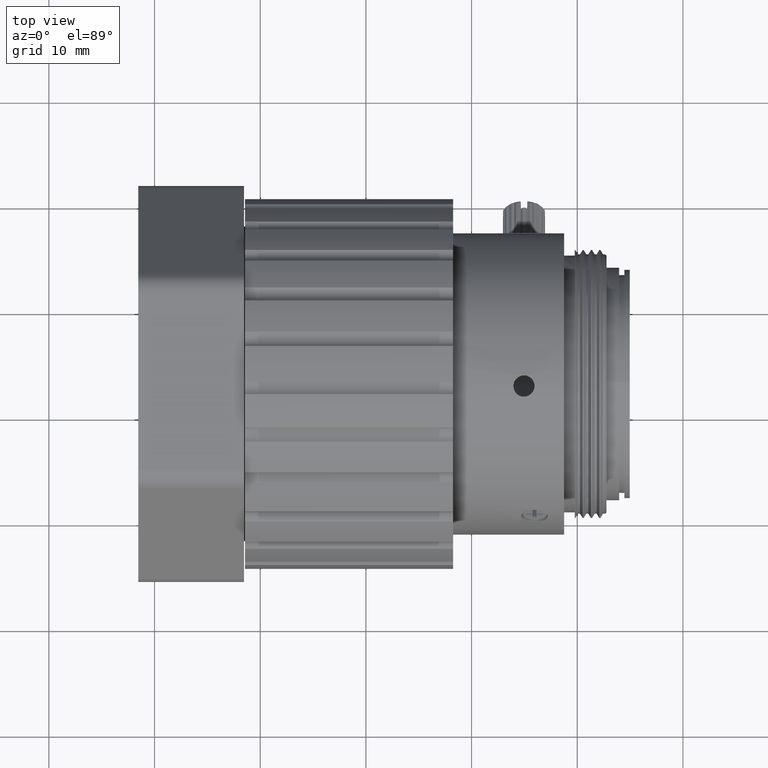
[diagram: clean part render]
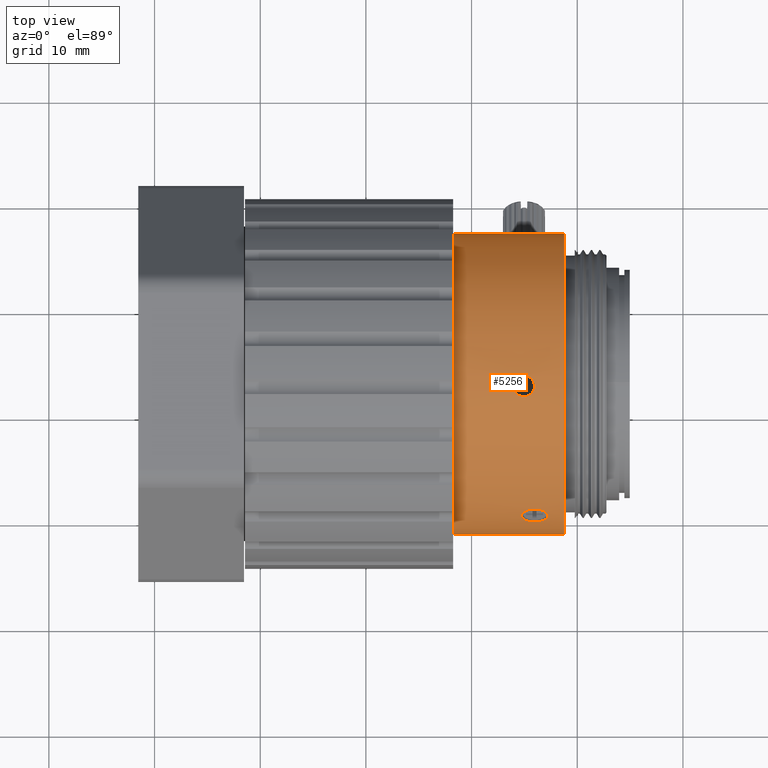
[diagram: same view with one face highlighted and labeled with its STEP entity id]
A machine part, top view. The second image highlights one B-rep face of the part: STEP entity #5256.
In plain terms, the highlighted cylindrical surface (bore or boss wall) has radius 14.3 mm, axis along (-1, 0, 0).
Its self-contained STEP definition (entity closure, byte-faithful):
#248 = DIRECTION ( 'NONE',  ( 1.000000000000000000, -0.000000000000000000, -0.000000000000000000 ) ) ;
#467 = CARTESIAN_POINT ( 'NONE',  ( 13.95930528475796883, -8.972121651933210984, 38.85176325073183534 ) ) ;
#554 = CARTESIAN_POINT ( 'NONE',  ( 15.19131848937366236, -8.989553751104731205, 54.12118087033677938 ) ) ;
#576 = AXIS2_PLACEMENT_3D ( 'NONE', #1005, #5946, #14564 ) ;
#609 = CARTESIAN_POINT ( 'NONE',  ( 14.34488005729913418, 3.460288692734489580, 60.79642912444371206 ) ) ;
#701 = CARTESIAN_POINT ( 'NONE',  ( 15.75855046081519895, -9.354353363387508224, 39.49256108022893130 ) ) ;
#732 = ORIENTED_EDGE ( 'NONE', *, *, #12759, .T. ) ;
#847 = CARTESIAN_POINT ( 'NONE',  ( 15.83335502325608779, -8.769031132363121372, 38.54011996839888354 ) ) ;
#946 = CARTESIAN_POINT ( 'NONE',  ( 13.95930528475792443, 15.77669590175412395, 39.86027209547955863 ) ) ;
#990 = CARTESIAN_POINT ( 'NONE',  ( 15.22131645592887494, 1.687600854544923035, 60.72944165753938961 ) ) ;
#1005 = CARTESIAN_POINT ( 'NONE',  ( 18.76177132358969146, 3.111155698412859660, 46.50038591147875877 ) ) ;
#1022 = CARTESIAN_POINT ( 'NONE',  ( 8.259214877692100387, -3.644554944435801858, 33.89680016475590918 ) ) ;
#1109 = VERTEX_POINT ( 'NONE', #7000 ) ;
#1513 = CARTESIAN_POINT ( 'NONE',  ( 14.95812204243787136, -9.112611687075196087, 53.92219134493483779 ) ) ;
#1533 = DIRECTION ( 'NONE',  ( 0.000000000000000000, -0.4724273177222766407, -0.8813696327136164577 ) ) ;
#1562 = CARTESIAN_POINT ( 'NONE',  ( 14.95921487769202862, 1.661582236805126289, 60.72672545277668377 ) ) ;
#1656 = CARTESIAN_POINT ( 'NONE',  ( 14.08537875894052505, -8.768845173143894556, 38.53985438590066792 ) ) ;
#1674 = CARTESIAN_POINT ( 'NONE',  ( 15.95921487769214053, -8.853651816609298564, 54.33194904366143874 ) ) ;
#1734 = CARTESIAN_POINT ( 'NONE',  ( 15.57412110108668912, -9.443805607539927038, 39.65411162239735887 ) ) ;
#1817 = CARTESIAN_POINT ( 'NONE',  ( 14.74221701240147553, -9.644997154344610024, 52.96515201297404474 ) ) ;
#1890 = CARTESIAN_POINT ( 'NONE',  ( 14.95921487769202862, -8.484429016410336644, 38.13184869842579872 ) ) ;
#1988 = CARTESIAN_POINT ( 'NONE',  ( 15.22105673595566167, 15.22542152171683405, 38.90189308559828163 ) ) ;
#2020 = CARTESIAN_POINT ( 'NONE',  ( 15.93344270216973158, 2.399310190230629747, 60.78317096871395364 ) ) ;
#2191 = EDGE_LOOP ( 'NONE', ( #9912 ) ) ;
#2223 = CARTESIAN_POINT ( 'NONE',  ( 15.93344270216976533, 15.83633314886254873, 39.97546967651700811 ) ) ;
#2541 = CARTESIAN_POINT ( 'NONE',  ( 13.95912494831253881, -9.109658170048044568, 39.07349365937822228 ) ) ;
#2777 = CARTESIAN_POINT ( 'NONE',  ( 14.15987974451657649, -8.706183481334706542, 38.44749700429936468 ) ) ;
#2932 = CARTESIAN_POINT ( 'NONE',  ( 15.93344270216971736, -8.902176243854453830, 38.74251708920546378 ) ) ;
#2944 = CARTESIAN_POINT ( 'NONE',  ( 17.20910038907542727, -9.414951543638252929, 53.40062078250101507 ) ) ;
#2996 = CARTESIAN_POINT ( 'NONE',  ( 13.98498711210083201, 2.920767604031914377, 60.79963153572202827 ) ) ;
#3024 = CARTESIAN_POINT ( 'NONE',  ( 16.95836055079739069, -9.111506930851959396, 53.92398689543218637 ) ) ;
#3069 = CARTESIAN_POINT ( 'NONE',  ( 15.57412110108668557, 3.459588895768567429, 60.79643849050522419 ) ) ;
#3096 = CARTESIAN_POINT ( 'NONE',  ( 15.32876985512045565, -8.940000344526005449, 54.19867201807329593 ) ) ;
#3144 = B_SPLINE_CURVE_WITH_KNOTS ( 'NONE', 3,
 ( #1562, #14892, #5225, #15133, #10099, #6654, #13934, #13702, #14977, #6419, #2996, #4043, #11537, #609, #5465, #14304, #5535, #5607, #12959, #11924, #3069, #3381, #15280, #8086, #4493, #7934, #2020, #8162, #10645, #4269, #11761, #990, #11845, #5842 ),
 .UNSPECIFIED., .T., .F.,
 ( 4, 2, 2, 2, 2, 2, 2, 2, 2, 2, 2, 2, 2, 2, 2, 2, 4 ),
 ( 0.000000000000000000, 0.0003908431693371314871, 0.0007816863386742629741, 0.001172529508011394732, 0.001563372677348526599, 0.001954215846685658682, 0.002345059016022790332, 0.002735902185359921981, 0.003126745354697053631, 0.003517588524034186148, 0.003908431693371318232, 0.004299274862708445978, 0.004690118032045573725, 0.005080961201382702339, 0.005471804370719830085, 0.005862647540056963036, 0.006253490709394095119 ),
 .UNSPECIFIED. ) ;
#3169 = CARTESIAN_POINT ( 'NONE',  ( 15.76009210075363143, -8.707131744339536183, 38.44887504033437864 ) ) ;
#3261 = CARTESIAN_POINT ( 'NONE',  ( 15.95921487769214053, -8.853651816609298564, 54.33194904366145295 ) ) ;
#3263 = CARTESIAN_POINT ( 'NONE',  ( 15.83335502325613398, 15.94504164138818858, 40.19197528586151691 ) ) ;
#3341 = CARTESIAN_POINT ( 'NONE',  ( 14.95921487769202862, 16.15631387484378578, 40.64258358323402121 ) ) ;
#3381 = CARTESIAN_POINT ( 'NONE',  ( 15.75855046081519539, 3.274955900179356227, 60.79974584572793361 ) ) ;
#3423 = CARTESIAN_POINT ( 'NONE',  ( 15.46355598764074735, 16.10390950308601177, 40.52703807386266277 ) ) ;
#3499 = CARTESIAN_POINT ( 'NONE',  ( 15.75855046081523270, 15.41286455844685932, 39.20885080847956061 ) ) ;
#3702 = FACE_BOUND ( 'NONE', #9364, .T. ) ;
#3784 = CYLINDRICAL_SURFACE ( 'NONE', #7406, 14.29999999877252037 ) ;
#3920 = B_SPLINE_CURVE_WITH_KNOTS ( 'NONE', 3,
 ( #15063, #3977, #7716, #12595, #13715, #2777, #1656, #11393, #467, #2541, #5317, #10194, #5399, #15447, #7872, #15150, #12823, #4351, #6595, #14174, #1734, #701, #9157, #10500, #9086, #6749, #2932, #847, #3169, #11469, #10275, #5553, #8024, #1890 ),
 .UNSPECIFIED., .T., .F.,
 ( 4, 2, 2, 2, 2, 2, 2, 2, 2, 2, 2, 2, 2, 2, 2, 2, 4 ),
 ( 0.000000000000000000, 0.0003908431693371138146, 0.0007816863386742276291, 0.001172529508011341606, 0.001563372677348455258, 0.001954215846685568910, 0.002345059016022683213, 0.002735902185359797081, 0.003126745354696910516, 0.003517588524034019615, 0.003908431693371128279, 0.004299274862708237811, 0.004690118032045346476, 0.005080961201382455140, 0.005471804370719563805, 0.005862647540056669868, 0.006253490709393774195 ),
 .UNSPECIFIED. ) ;
#3977 = CARTESIAN_POINT ( 'NONE',  ( 14.82705489759719519, -8.484429016410317104, 38.13184869842576319 ) ) ;
#3990 = CARTESIAN_POINT ( 'NONE',  ( 15.32916379140453955, -9.971625122841864197, 52.27401635527879620 ) ) ;
#4043 = CARTESIAN_POINT ( 'NONE',  ( 14.08507502432633984, 3.163029774874128730, 60.80080486090515990 ) ) ;
#4226 = CARTESIAN_POINT ( 'NONE',  ( 17.05148280098941171, -9.183647044423649319, 53.80452596523262798 ) ) ;
#4269 = CARTESIAN_POINT ( 'NONE',  ( 15.57355056234219326, 1.861065601876506381, 60.74594733032839144 ) ) ;
#4298 = CARTESIAN_POINT ( 'NONE',  ( 15.63150836329849724, -8.871685613679291649, 54.30458254146352459 ) ) ;
#4351 = CARTESIAN_POINT ( 'NONE',  ( 15.09137651572853756, -9.538578568225034360, 39.83148623099615548 ) ) ;
#4372 = CARTESIAN_POINT ( 'NONE',  ( 14.34430949822017354, 16.07291681729526545, 40.45958515846609771 ) ) ;
#4493 = CARTESIAN_POINT ( 'NONE',  ( 15.95912447073094498, 2.791067125805450910, 60.79739830560367864 ) ) ;
#4531 = VERTEX_POINT ( 'NONE', #1022 ) ;
#4533 = CARTESIAN_POINT ( 'NONE',  ( 14.15833809906484575, 15.41372338993182289, 39.21028484288729743 ) ) ;
#4694 = CARTESIAN_POINT ( 'NONE',  ( 15.93282684386320902, 15.58892662035935750, 39.51399087047769854 ) ) ;
#5047 = FACE_OUTER_BOUND ( 'NONE', #7938, .T. ) ;
#5179 = CARTESIAN_POINT ( 'NONE',  ( 15.19055744020579013, -9.934050655140881148, 52.35921894373060326 ) ) ;
#5225 = CARTESIAN_POINT ( 'NONE',  ( 14.69737452348663709, 1.687538514616015783, 60.72943520391272898 ) ) ;
#5250 = CARTESIAN_POINT ( 'NONE',  ( 15.79398215728857302, -10.03471994688567825, 52.12852534500747481 ) ) ;
#5256 = ADVANCED_FACE ( 'NONE', ( #5047, #12465, #9997, #14707, #3702, #11042 ), #3784, .T. ) ;
#5317 = CARTESIAN_POINT ( 'NONE',  ( 13.98498711210083734, -9.177160219944797248, 39.18588217304507992 ) ) ;
#5328 = CARTESIAN_POINT ( 'NONE',  ( 14.70932936612829600, -9.569890789890818539, 53.11156309801916819 ) ) ;
#5399 = CARTESIAN_POINT ( 'NONE',  ( 14.15833809906487950, -9.353540868903003513, 39.49110029314155668 ) ) ;
#5465 = CARTESIAN_POINT ( 'NONE',  ( 14.45487485081829959, 3.533789648212835033, 60.79422781457596159 ) ) ;
#5489 = CARTESIAN_POINT ( 'NONE',  ( 16.28657277654837898, -8.871637473283467301, 54.30465591587255147 ) ) ;
#5535 = CARTESIAN_POINT ( 'NONE',  ( 14.82705694834420740, 3.660586784123583737, 60.78982695887275867 ) ) ;
#5553 = CARTESIAN_POINT ( 'NONE',  ( 15.22131645592887317, -8.499790627606614635, 38.15302337997840709 ) ) ;
#5607 = CARTESIAN_POINT ( 'NONE',  ( 15.09137651572853045, 3.660586293143974768, 60.78982697775099098 ) ) ;
#5648 = CARTESIAN_POINT ( 'NONE',  ( 14.08537875894049662, 15.94517866296883746, 40.19226912251856021 ) ) ;
#5726 = CARTESIAN_POINT ( 'NONE',  ( 15.76009210075367228, 15.99311237304676681, 40.29120419240092588 ) ) ;
#5748 = EDGE_CURVE ( 'NONE', #10447, #10447, #3920, .T. ) ;
#5842 = CARTESIAN_POINT ( 'NONE',  ( 14.95921487769202862, 1.661582236805126289, 60.72672545277668377 ) ) ;
#5884 = CARTESIAN_POINT ( 'NONE',  ( 14.45520895285843288, 16.10398665897956860, 40.52720641621360897 ) ) ;
#5946 = DIRECTION ( 'NONE',  ( -1.000000000000000000, 0.000000000000000000, 0.000000000000000000 ) ) ;
#6419 = CARTESIAN_POINT ( 'NONE',  ( 13.95912494831253703, 2.789685271154457524, 60.79736730253735999 ) ) ;
#6595 = CARTESIAN_POINT ( 'NONE',  ( 15.22105673595567588, -9.526465030925500344, 39.80837037324028671 ) ) ;
#6654 = CARTESIAN_POINT ( 'NONE',  ( 14.15987974451657827, 2.045818920815406727, 60.76094629986699402 ) ) ;
#6683 = CARTESIAN_POINT ( 'NONE',  ( 16.28691890926808838, -10.02191444835214362, 52.15869302982645195 ) ) ;
#6741 = ORIENTED_EDGE ( 'NONE', *, *, #10620, .T. ) ;
#6749 = CARTESIAN_POINT ( 'NONE',  ( 15.95930480696577547, -8.972861023517092249, 38.85293143589064613 ) ) ;
#6844 = CARTESIAN_POINT ( 'NONE',  ( 15.83305128474489898, 15.46957646306146827, 39.30497632943272635 ) ) ;
#6918 = CARTESIAN_POINT ( 'NONE',  ( 14.34488005729913063, 15.31732579727987975, 39.05000626261455920 ) ) ;
#7000 = CARTESIAN_POINT ( 'NONE',  ( 14.95921487769202862, 16.15631387484378578, 40.64258358323402831 ) ) ;
#7001 = EDGE_CURVE ( 'NONE', #1109, #1109, #12532, .T. ) ;
#7003 = CARTESIAN_POINT ( 'NONE',  ( 14.82705489759718809, 16.15631387484379644, 40.64258358323404252 ) ) ;
#7330 = CIRCLE ( 'NONE', #12927, 14.29999999877252037 ) ;
#7406 = AXIS2_PLACEMENT_3D ( 'NONE', #12236, #14783, #1533 ) ;
#7422 = EDGE_CURVE ( 'NONE', #4531, #4531, #7330, .T. ) ;
#7528 = EDGE_LOOP ( 'NONE', ( #8093 ) ) ;
#7716 = CARTESIAN_POINT ( 'NONE',  ( 14.69737452348663354, -8.499753868637499821, 38.15297261882961521 ) ) ;
#7872 = CARTESIAN_POINT ( 'NONE',  ( 14.45487485081831736, -9.478991482247787204, 39.71947669695867944 ) ) ;
#7884 = CARTESIAN_POINT ( 'NONE',  ( 16.72710980210590037, -9.934438675150957465, 52.35838492496344543 ) ) ;
#7934 = CARTESIAN_POINT ( 'NONE',  ( 15.95930480696578257, 2.530274209233573490, 60.78917861022014080 ) ) ;
#7938 = EDGE_LOOP ( 'NONE', ( #6741 ) ) ;
#7962 = CARTESIAN_POINT ( 'NONE',  ( 15.79398496531922369, -8.853651816609298564, 54.33194904366143874 ) ) ;
#8024 = CARTESIAN_POINT ( 'NONE',  ( 15.09137485778686205, -8.484429016410356184, 38.13184869842582714 ) ) ;
#8086 = CARTESIAN_POINT ( 'NONE',  ( 15.93282684386318415, 2.922665823820359332, 60.79965003298774207 ) ) ;
#8093 = ORIENTED_EDGE ( 'NONE', *, *, #9085, .T. ) ;
#8162 = CARTESIAN_POINT ( 'NONE',  ( 15.83335502325610200, 2.157456586213644112, 60.76906248017602508 ) ) ;
#8207 = CARTESIAN_POINT ( 'NONE',  ( 13.95912494831250505, 15.65343999413228815, 39.63029677252087168 ) ) ;
#8294 = ORIENTED_EDGE ( 'NONE', *, *, #7422, .T. ) ;
#9020 = CARTESIAN_POINT ( 'NONE',  ( 17.17699432802687198, -9.643919900952408142, 52.96730075138862048 ) ) ;
#9085 = EDGE_CURVE ( 'NONE', #11801, #11801, #13012, .T. ) ;
#9086 = CARTESIAN_POINT ( 'NONE',  ( 15.95912447073094143, -9.110375946816569481, 39.07467487907712211 ) ) ;
#9100 = CARTESIAN_POINT ( 'NONE',  ( 17.17621263844466029, -9.334605963803589646, 53.54422386087931329 ) ) ;
#9157 = CARTESIAN_POINT ( 'NONE',  ( 15.83305128474487056, -9.299462172597360521, 39.39538436965910506 ) ) ;
#9169 = CARTESIAN_POINT ( 'NONE',  ( 16.58926419563781351, -8.939880599662433980, 54.19885891848504400 ) ) ;
#9256 = CARTESIAN_POINT ( 'NONE',  ( 14.69737452348661222, 16.14568244926018181, 40.61874991169412397 ) ) ;
#9330 = CARTESIAN_POINT ( 'NONE',  ( 14.15987974451654630, 15.99383165575799914, 40.29271443027008104 ) ) ;
#9364 = EDGE_LOOP ( 'NONE', ( #9775 ) ) ;
#9409 = CARTESIAN_POINT ( 'NONE',  ( 15.57355056234222879, 16.07321882657641154, 40.46021498267397476 ) ) ;
#9519 = EDGE_LOOP ( 'NONE', ( #8294 ) ) ;
#9775 = ORIENTED_EDGE ( 'NONE', *, *, #5748, .T. ) ;
#9912 = ORIENTED_EDGE ( 'NONE', *, *, #7001, .T. ) ;
#9997 = FACE_OUTER_BOUND ( 'NONE', #9519, .T. ) ;
#10052 = CARTESIAN_POINT ( 'NONE',  ( 15.95921487769214053, -8.853651816609298564, 54.33194904366143874 ) ) ;
#10099 = CARTESIAN_POINT ( 'NONE',  ( 14.34430949822019485, 1.861762050281032588, 60.74600069472268160 ) ) ;
#10194 = CARTESIAN_POINT ( 'NONE',  ( 14.08507502432634872, -9.299307434781391990, 39.39510070477885506 ) ) ;
#10206 = CARTESIAN_POINT ( 'NONE',  ( 14.74143532762894004, -9.335799466514478340, 53.54213627274589271 ) ) ;
#10275 = CARTESIAN_POINT ( 'NONE',  ( 15.46355598764071893, -8.558292176940218710, 38.23500497032311074 ) ) ;
#10366 = CARTESIAN_POINT ( 'NONE',  ( 14.70910100183398761, -9.415796060051460969, 53.39908749014260536 ) ) ;
#10447 = VERTEX_POINT ( 'NONE', #15465 ) ;
#10500 = CARTESIAN_POINT ( 'NONE',  ( 15.93282684386317705, -9.178125348941010841, 39.18751683097096361 ) ) ;
#10527 = CARTESIAN_POINT ( 'NONE',  ( 14.08507502432632208, 15.46974475514595682, 39.30525216875240346 ) ) ;
#10620 = EDGE_CURVE ( 'NONE', #15543, #15543, #11538, .T. ) ;
#10645 = CARTESIAN_POINT ( 'NONE',  ( 15.76009210075364919, 2.047486466531472260, 60.76107850170117786 ) ) ;
#10758 = CARTESIAN_POINT ( 'NONE',  ( 15.57412110108669445, 15.31768380701005583, 39.05060762153381404 ) ) ;
#11042 = FACE_BOUND ( 'NONE', #14316, .T. ) ;
#11250 = CARTESIAN_POINT ( 'NONE',  ( 16.96030696043754205, -9.836854823307954021, 52.57102908423685506 ) ) ;
#11328 = CARTESIAN_POINT ( 'NONE',  ( 8.259214877692100387, 3.111155698412859660, 46.50038591147875877 ) ) ;
#11393 = CARTESIAN_POINT ( 'NONE',  ( 13.98560297320796053, -8.901140419959412853, 38.74092556668349374 ) ) ;
#11408 = CARTESIAN_POINT ( 'NONE',  ( 16.58965806702258661, -9.971536644187668941, 52.27421756768901417 ) ) ;
#11469 = CARTESIAN_POINT ( 'NONE',  ( 15.57355056234220747, -8.600817333214219929, 38.29499542143409485 ) ) ;
#11481 = CARTESIAN_POINT ( 'NONE',  ( 16.12444479006505205, -8.853651816609296787, 54.33194904366143874 ) ) ;
#11537 = CARTESIAN_POINT ( 'NONE',  ( 14.15833809906486529, 3.273284574209868847, 60.79977259840759984 ) ) ;
#11538 = CIRCLE ( 'NONE', #576, 14.29999999877252037 ) ;
#11571 = CARTESIAN_POINT ( 'NONE',  ( 14.86657366042532402, -9.183853793218263561, 53.80419879440624698 ) ) ;
#11761 = CARTESIAN_POINT ( 'NONE',  ( 15.46355598764074202, 1.787849769092918706, 60.73911469025068754 ) ) ;
#11801 = VERTEX_POINT ( 'NONE', #3261 ) ;
#11805 = CARTESIAN_POINT ( 'NONE',  ( 13.98560297320792500, 15.83719353584974598, 39.97716248758497670 ) ) ;
#11845 = CARTESIAN_POINT ( 'NONE',  ( 15.09137485778686916, 1.661582236805155599, 60.72672545277667666 ) ) ;
#11879 = CARTESIAN_POINT ( 'NONE',  ( 15.95930480696582165, 15.77605390952222741, 39.85904768832565281 ) ) ;
#11924 = CARTESIAN_POINT ( 'NONE',  ( 15.46322184684544609, 3.533973466543223196, 60.79422216342950236 ) ) ;
#11960 = CARTESIAN_POINT ( 'NONE',  ( 15.95912447073098406, 15.65277591624983344, 39.62908454975559636 ) ) ;
#12236 = CARTESIAN_POINT ( 'NONE',  ( -17.27467827770134789, 3.111155698412859660, 46.50038591147875877 ) ) ;
#12465 = FACE_BOUND ( 'NONE', #2191, .T. ) ;
#12522 = CARTESIAN_POINT ( 'NONE',  ( 17.05185559999838318, -9.778035978436172115, 52.69568082048955660 ) ) ;
#12532 = B_SPLINE_CURVE_WITH_KNOTS ( 'NONE', 3,
 ( #15468, #7003, #9256, #5884, #4372, #9330, #5648, #11805, #946, #8207, #14196, #10527, #4533, #6918, #13242, #12997, #14352, #15396, #1988, #14121, #10758, #3499, #6844, #4694, #11960, #11879, #2223, #3263, #5726, #9409, #3423, #15633, #14270, #3341 ),
 .UNSPECIFIED., .T., .F.,
 ( 4, 2, 2, 2, 2, 2, 2, 2, 2, 2, 2, 2, 2, 2, 2, 2, 4 ),
 ( 0.000000000000000000, 0.0003908431693371106704, 0.0007816863386742213407, 0.001172529508011332065, 0.001563372677348442681, 0.001954215846685553298, 0.002345059016022664131, 0.002735902185359774530, 0.003126745354696885363, 0.003517588524033996196, 0.003908431693371106595, 0.004299274862708216995, 0.004690118032045328261, 0.005080961201382438661, 0.005471804370719549060, 0.005862647540056660327, 0.006253490709393770726 ),
 .UNSPECIFIED. ) ;
#12595 = CARTESIAN_POINT ( 'NONE',  ( 14.45520895285844887, -8.558184966134554372, 38.23485398018374326 ) ) ;
#12755 = CARTESIAN_POINT ( 'NONE',  ( 15.63185443180945988, -10.02194833665034501, 52.15861363071835655 ) ) ;
#12759 = EDGE_CURVE ( 'NONE', #13559, #13559, #3144, .T. ) ;
#12823 = CARTESIAN_POINT ( 'NONE',  ( 14.82705694834419674, -9.538578797365815376, 39.83148666563606355 ) ) ;
#12927 = AXIS2_PLACEMENT_3D ( 'NONE', #11328, #248, #15070 ) ;
#12959 = CARTESIAN_POINT ( 'NONE',  ( 15.22105673595566522, 3.634510604447370508, 60.79089427559785719 ) ) ;
#12997 = CARTESIAN_POINT ( 'NONE',  ( 14.69711476554496699, 15.22545455787480151, 38.90194535108086882 ) ) ;
#13012 = B_SPLINE_CURVE_WITH_KNOTS ( 'NONE', 3,
 ( #1674, #11481, #5489, #9169, #15163, #3024, #4226, #9100, #2944, #13964, #9020, #12522, #11250, #7884, #11408, #6683, #14918, #5250, #12755, #3990, #5179, #13727, #14031, #1817, #5328, #10366, #10206, #11571, #1513, #554, #3096, #4298, #7962, #10052 ),
 .UNSPECIFIED., .T., .F.,
 ( 4, 2, 2, 2, 2, 2, 2, 2, 2, 2, 2, 2, 2, 2, 2, 2, 4 ),
 ( 0.000000000000000000, 0.0004886358867109240464, 0.0009772717734218480928, 0.001465907660132772248, 0.001954543546843696186, 0.002443179433554619907, 0.002931815320265544495, 0.003420451206976468216, 0.003909087093687392371, 0.004397722980398316960, 0.004886358867109239813, 0.005374994753820164402, 0.005863630640531088990, 0.006352266527242012711, 0.006840902413952936433, 0.007329538300663860154, 0.007818174187374789946 ),
 .UNSPECIFIED. ) ;
#13242 = CARTESIAN_POINT ( 'NONE',  ( 14.45487485081827828, 15.27866892927365328, 38.98745322290179871 ) ) ;
#13559 = VERTEX_POINT ( 'NONE', #14822 ) ;
#13702 = CARTESIAN_POINT ( 'NONE',  ( 13.98560297320796053, 2.397413979348382629, 60.78306968016801193 ) ) ;
#13715 = CARTESIAN_POINT ( 'NONE',  ( 14.34430949822019841, -8.601211772337592265, 38.29557188124769596 ) ) ;
#13727 = CARTESIAN_POINT ( 'NONE',  ( 14.96006844263942881, -9.837737585598860690, 52.56911691770078932 ) ) ;
#13934 = CARTESIAN_POINT ( 'NONE',  ( 14.08537875894052682, 2.157133605413760424, 60.76903422601723292 ) ) ;
#13964 = CARTESIAN_POINT ( 'NONE',  ( 17.20932875373084769, -9.569081705272205696, 53.11311479604851371 ) ) ;
#14031 = CARTESIAN_POINT ( 'NONE',  ( 14.86694646619081794, -9.778193170274812829, 52.69532917927508464 ) ) ;
#14121 = CARTESIAN_POINT ( 'NONE',  ( 15.46322184684546919, 15.27857212607205994, 38.98729685713121285 ) ) ;
#14174 = CARTESIAN_POINT ( 'NONE',  ( 15.46322184684545498, -9.479078497376583812, 39.71963871387568190 ) ) ;
#14196 = CARTESIAN_POINT ( 'NONE',  ( 13.98498711210079470, 15.58985971115157909, 39.51564402566931733 ) ) ;
#14270 = CARTESIAN_POINT ( 'NONE',  ( 15.09137485778687093, 16.15631387484377512, 40.64258358323399989 ) ) ;
#14304 = CARTESIAN_POINT ( 'NONE',  ( 14.69711476554497409, 3.634448823132707229, 60.79089675300859597 ) ) ;
#14316 = EDGE_LOOP ( 'NONE', ( #732 ) ) ;
#14352 = CARTESIAN_POINT ( 'NONE',  ( 14.82705694834419496, 15.21145910848092875, 38.87984410992755357 ) ) ;
#14564 = DIRECTION ( 'NONE',  ( 0.000000000000000000, -0.4724273177222766407, -0.8813696327136164577 ) ) ;
#14707 = FACE_BOUND ( 'NONE', #7528, .T. ) ;
#14783 = DIRECTION ( 'NONE',  ( -1.000000000000000000, 0.000000000000000000, 0.000000000000000000 ) ) ;
#14822 = CARTESIAN_POINT ( 'NONE',  ( 14.95921487769202862, 1.661582236805125845, 60.72672545277668377 ) ) ;
#14892 = CARTESIAN_POINT ( 'NONE',  ( 14.82705489759718809, 1.661582236805096979, 60.72672545277669798 ) ) ;
#14918 = CARTESIAN_POINT ( 'NONE',  ( 16.12444131642159917, -10.03472027494135865, 52.12852457875435164 ) ) ;
#14977 = CARTESIAN_POINT ( 'NONE',  ( 13.95930528475795640, 2.528892845417785473, 60.78912238822501735 ) ) ;
#15063 = CARTESIAN_POINT ( 'NONE',  ( 14.95921487769202862, -8.484429016410336644, 38.13184869842579872 ) ) ;
#15070 = DIRECTION ( 'NONE',  ( 0.000000000000000000, -0.4724273177222766407, -0.8813696327136164577 ) ) ;
#15133 = CARTESIAN_POINT ( 'NONE',  ( 14.45520895285845775, 1.787665402393677549, 60.73909733803910171 ) ) ;
#15150 = CARTESIAN_POINT ( 'NONE',  ( 14.69711476554498475, -9.526436285768811629, 39.80831563034693943 ) ) ;
#15163 = CARTESIAN_POINT ( 'NONE',  ( 16.72787088645245390, -8.990032239800124003, 54.12039797195672719 ) ) ;
#15280 = CARTESIAN_POINT ( 'NONE',  ( 15.83305128474485990, 3.163352804774600457, 60.80079703534458702 ) ) ;
#15396 = CARTESIAN_POINT ( 'NONE',  ( 15.09137651572853400, 15.21145937031975492, 38.87984452568925775 ) ) ;
#15447 = CARTESIAN_POINT ( 'NONE',  ( 14.34488005729915550, -9.444147394775685100, 39.65472234737813295 ) ) ;
#15465 = CARTESIAN_POINT ( 'NONE',  ( 14.95921487769202862, -8.484429016410333091, 38.13184869842578451 ) ) ;
#15468 = CARTESIAN_POINT ( 'NONE',  ( 14.95921487769202862, 16.15631387484378578, 40.64258358323402121 ) ) ;
#15543 = VERTEX_POINT ( 'NONE', #15630 ) ;
#15630 = CARTESIAN_POINT ( 'NONE',  ( 18.76177132358969146, -3.644554944435801858, 33.89680016475590918 ) ) ;
#15633 = CARTESIAN_POINT ( 'NONE',  ( 15.22131645592888738, 16.14565686830039226, 40.61869269691867856 ) ) ;